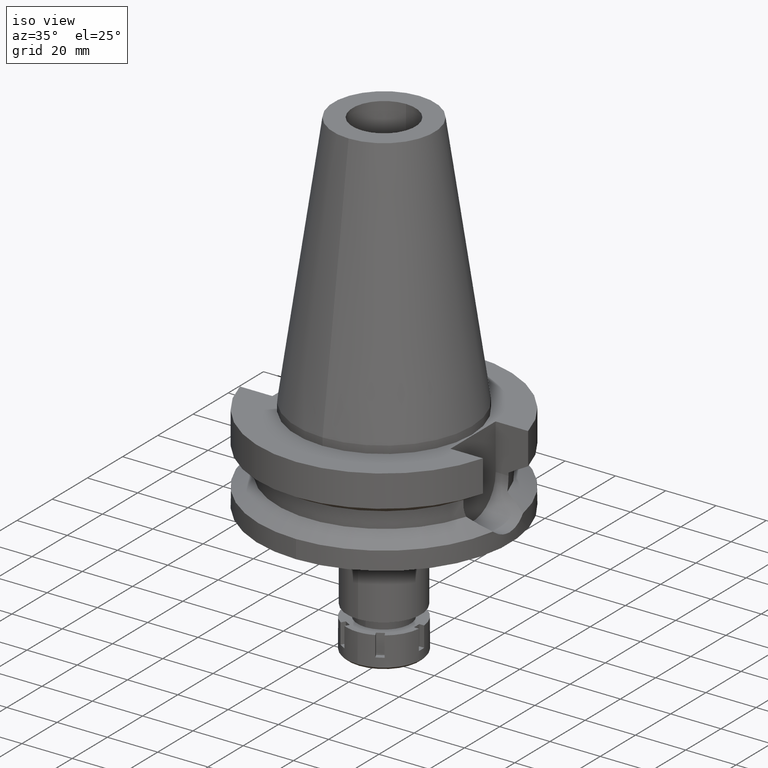
[diagram: clean part render]
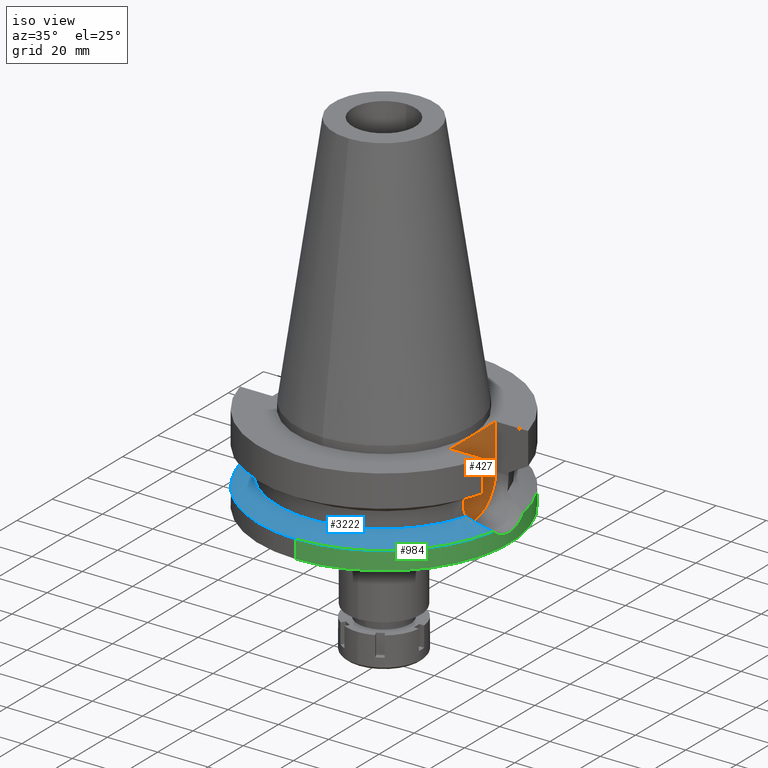
[diagram: same view with three faces highlighted in distinct colors, each labeled with its STEP entity id]
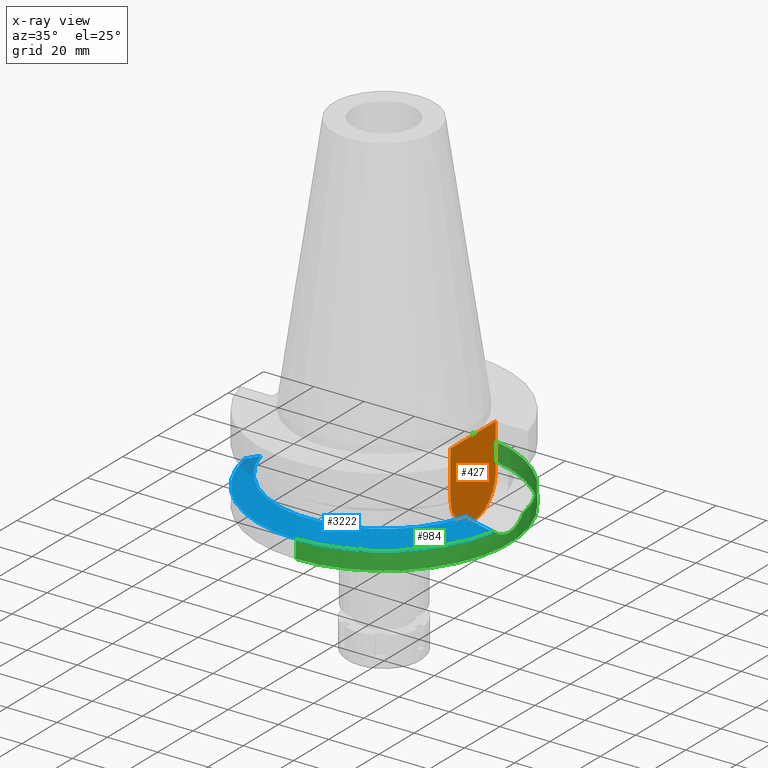
[diagram: x-ray of the same camera — body ghosted, the three highlighted faces saturated]
A machine part, iso view with three faces highlighted in distinct colors.
The next image is the same camera in x-ray (body ghosted, the three faces saturated) — at least one of them is partly hidden behind the body in this view.
Their STEP definitions:

[orange] entity #427 — the highlighted planar face has unit normal (1, 0, 0).
#89 = DIRECTION ( 'NONE',  ( 0.0000000000000000000, 1.000000000000000000, 0.0000000000000000000 ) ) ;
#187 = LINE ( 'NONE', #202, #918 ) ;
#202 = CARTESIAN_POINT ( 'NONE',  ( 35.39999999999999858, -12.84999999999999964, -21.14999999999999858 ) ) ;
#366 = LINE ( 'NONE', #3529, #743 ) ;
#390 = DIRECTION ( 'NONE',  ( -1.000000000000000000, 0.0000000000000000000, 0.0000000000000000000 ) ) ;
#427 = ADVANCED_FACE ( 'NONE', ( #1454 ), #3168, .T. ) ;
#472 = CARTESIAN_POINT ( 'NONE',  ( 35.39999999999999858, 12.84999999999999964, -3.000000000000000000 ) ) ;
#494 = CARTESIAN_POINT ( 'NONE',  ( 35.39999999999999858, -12.84999999999999964, -3.000000000000000000 ) ) ;
#632 = VECTOR ( 'NONE', #667, 1000.000000000000000 ) ;
#639 = CARTESIAN_POINT ( 'NONE',  ( 35.39999999999999858, 0.0000000000000000000, 0.0000000000000000000 ) ) ;
#667 = DIRECTION ( 'NONE',  ( 0.0000000000000000000, 0.0000000000000000000, -1.000000000000000000 ) ) ;
#669 = EDGE_CURVE ( 'NONE', #3418, #3683, #187, .T. ) ;
#743 = VECTOR ( 'NONE', #970, 1000.000000000000000 ) ;
#916 = ORIENTED_EDGE ( 'NONE', *, *, #2698, .F. ) ;
#918 = VECTOR ( 'NONE', #3643, 1000.000000000000000 ) ;
#962 = DIRECTION ( 'NONE',  ( 0.0000000000000000000, 1.000000000000000000, 0.0000000000000000000 ) ) ;
#970 = DIRECTION ( 'NONE',  ( 0.0000000000000000000, -1.000000000000000000, 0.0000000000000000000 ) ) ;
#1078 = ORIENTED_EDGE ( 'NONE', *, *, #3591, .F. ) ;
#1120 = EDGE_CURVE ( 'NONE', #1741, #3683, #366, .T. ) ;
#1182 = CARTESIAN_POINT ( 'NONE',  ( 35.39999999999999858, 0.0000000000000000000, -21.14999999999999858 ) ) ;
#1255 = LINE ( 'NONE', #3541, #632 ) ;
#1330 = ORIENTED_EDGE ( 'NONE', *, *, #1120, .T. ) ;
#1454 = FACE_OUTER_BOUND ( 'NONE', #3000, .T. ) ;
#1580 = AXIS2_PLACEMENT_3D ( 'NONE', #1182, #390, #962 ) ;
#1741 = VERTEX_POINT ( 'NONE', #472 ) ;
#2051 = CIRCLE ( 'NONE', #1580, 12.84999999999999964 ) ;
#2406 = VERTEX_POINT ( 'NONE', #2628 ) ;
#2454 = CARTESIAN_POINT ( 'NONE',  ( 35.39999999999999858, -12.84999999999999964, -21.14999999999999858 ) ) ;
#2628 = CARTESIAN_POINT ( 'NONE',  ( 35.39999999999999858, 12.84999999999999964, -21.14999999999999858 ) ) ;
#2632 = DIRECTION ( 'NONE',  ( 1.000000000000000000, 0.0000000000000000000, 0.0000000000000000000 ) ) ;
#2698 = EDGE_CURVE ( 'NONE', #2406, #3418, #2051, .T. ) ;
#3000 = EDGE_LOOP ( 'NONE', ( #3412, #916, #1078, #1330 ) ) ;
#3166 = AXIS2_PLACEMENT_3D ( 'NONE', #639, #2632, #89 ) ;
#3168 = PLANE ( 'NONE',  #3166 ) ;
#3412 = ORIENTED_EDGE ( 'NONE', *, *, #669, .F. ) ;
#3418 = VERTEX_POINT ( 'NONE', #2454 ) ;
#3529 = CARTESIAN_POINT ( 'NONE',  ( 35.39999999999999858, 12.84999999999999964, -3.000000000000000000 ) ) ;
#3541 = CARTESIAN_POINT ( 'NONE',  ( 35.39999999999999858, 12.84999999999999964, -3.000000000000000000 ) ) ;
#3591 = EDGE_CURVE ( 'NONE', #1741, #2406, #1255, .T. ) ;
#3643 = DIRECTION ( 'NONE',  ( 0.0000000000000000000, 0.0000000000000000000, 1.000000000000000000 ) ) ;
#3683 = VERTEX_POINT ( 'NONE', #494 ) ;

[blue] entity #3222 — the highlighted conical surface has half-angle 60 deg.
#17 = CARTESIAN_POINT ( 'NONE',  ( 44.18050680251486284, -10.79303268037383745, -28.12752329876328616 ) ) ;
#146 = CARTESIAN_POINT ( 'NONE',  ( -47.10444077492046233, -9.656436360011680264, -29.63100032741921197 ) ) ;
#163 = CARTESIAN_POINT ( 'NONE',  ( 0.0000000000000000000, 0.0000000000000000000, -26.40718074535000426 ) ) ;
#319 = ORIENTED_EDGE ( 'NONE', *, *, #2004, .F. ) ;
#388 = CARTESIAN_POINT ( 'NONE',  ( -45.35595685379431075, -10.37453825949165420, -28.73231565433005485 ) ) ;
#401 = CARTESIAN_POINT ( 'NONE',  ( 0.0000000000000000000, 0.0000000000000000000, -30.73730776426999967 ) ) ;
#443 = CARTESIAN_POINT ( 'NONE',  ( -45.65597843511095988, -10.26026402487122624, -28.88663795115392929 ) ) ;
#466 = CARTESIAN_POINT ( 'NONE',  ( -45.49495221064288586, -10.32197403586418183, -28.80381476601476010 ) ) ;
#551 = CARTESIAN_POINT ( 'NONE',  ( 44.92206859463513524, -10.53645564615531427, -28.50924508635253218 ) ) ;
#636 = ORIENTED_EDGE ( 'NONE', *, *, #2619, .F. ) ;
#713 = DIRECTION ( 'NONE',  ( 0.0000000000000000000, 0.0000000000000000000, 1.000000000000000000 ) ) ;
#755 = CARTESIAN_POINT ( 'NONE',  ( -48.69708272383760317, -8.880526328240629041, -30.44773561679232188 ) ) ;
#802 = CARTESIAN_POINT ( 'NONE',  ( 49.26250064874000145, -8.556052234130000045, -30.73730776426999967 ) ) ;
#829 = CARTESIAN_POINT ( 'NONE',  ( 48.20509490363120619, -9.162861385617201648, -30.19576983475676002 ) ) ;
#994 = EDGE_CURVE ( 'NONE', #2036, #1119, #1912, .T. ) ;
#997 = CIRCLE ( 'NONE', #1046, 50.00000000000000000 ) ;
#1046 = AXIS2_PLACEMENT_3D ( 'NONE', #401, #3489, #2043 ) ;
#1119 = VERTEX_POINT ( 'NONE', #1246 ) ;
#1145 = CARTESIAN_POINT ( 'NONE',  ( 45.28101941663414465, -10.40486596879754977, -28.69385293657803260 ) ) ;
#1183 = VERTEX_POINT ( 'NONE', #802 ) ;
#1199 = DIRECTION ( 'NONE',  ( 0.0000000000000000000, 0.0000000000000000000, -1.000000000000000000 ) ) ;
#1240 = CARTESIAN_POINT ( 'NONE',  ( -44.02898313747226666, -10.87224993265478012, -28.04968012967956881 ) ) ;
#1241 = DIRECTION ( 'NONE',  ( 0.9852500129747439050, -0.1711210446826074982, 0.0000000000000000000 ) ) ;
#1245 = FACE_OUTER_BOUND ( 'NONE', #2564, .T. ) ;
#1246 = CARTESIAN_POINT ( 'NONE',  ( 40.85052569294000335, -11.72538061688000077, -26.40718074535000426 ) ) ;
#1251 = CARTESIAN_POINT ( 'NONE',  ( -45.97435799354911978, -10.13562219576522239, -29.05036510477009415 ) ) ;
#1302 = CARTESIAN_POINT ( 'NONE',  ( -46.76576395726265645, -9.806563228170537272, -29.45708685090501788 ) ) ;
#1423 = CARTESIAN_POINT ( 'NONE',  ( 40.85052569294000335, -11.72538061688000077, -26.40718074535000426 ) ) ;
#1450 = EDGE_CURVE ( 'NONE', #1119, #1183, #3203, .T. ) ;
#1591 = CARTESIAN_POINT ( 'NONE',  ( -45.41397998709661721, -10.35267355713353865, -28.76216350671508337 ) ) ;
#1679 = AXIS2_PLACEMENT_3D ( 'NONE', #163, #713, #2084 ) ;
#1838 = VERTEX_POINT ( 'NONE', #3503 ) ;
#1912 = CIRCLE ( 'NONE', #1679, 42.50000000000000000 ) ;
#2004 = EDGE_CURVE ( 'NONE', #2916, #2036, #2238, .T. ) ;
#2005 = CARTESIAN_POINT ( 'NONE',  ( 41.75374701443529091, -11.51562693968261541, -26.87500595815307847 ) ) ;
#2019 = CARTESIAN_POINT ( 'NONE',  ( 43.79625427900679568, -10.91865426759223645, -27.92956461163012349 ) ) ;
#2036 = VERTEX_POINT ( 'NONE', #3327 ) ;
#2043 = DIRECTION ( 'NONE',  ( 0.0000000000000000000, -1.000000000000000000, 0.0000000000000000000 ) ) ;
#2084 = DIRECTION ( 'NONE',  ( 0.0000000000000000000, -1.000000000000000000, 0.0000000000000000000 ) ) ;
#2090 = CARTESIAN_POINT ( 'NONE',  ( -45.34288699052867599, -10.37944819937579410, -28.72559219624891114 ) ) ;
#2238 = B_SPLINE_CURVE_WITH_KNOTS ( 'NONE', 3,
 ( #3008, #755, #2366, #146, #1302, #2677, #1251, #443, #466, #1591, #2932, #388, #2090, #1240, #3522, #3259 ),
 .UNSPECIFIED., .F., .F.,
 ( 4, 2, 2, 1, 1, 1, 1, 2, 2, 4 ),
 ( 0.0000000000000000000, 0.2500000000000746625, 0.3750000000001129097, 0.4375000000001317835, 0.4687500000001411093, 0.4843750000001447176, 0.4921875000001464384, 0.4960937500001461609, 0.5000000000001458833, 1.000000000000000000 ),
 .UNSPECIFIED. ) ;
#2277 = CARTESIAN_POINT ( 'NONE',  ( 46.99199985552174752, -9.743663666346247254, -29.57370261077979023 ) ) ;
#2288 = AXIS2_PLACEMENT_3D ( 'NONE', #3179, #2377, #3209 ) ;
#2325 = ORIENTED_EDGE ( 'NONE', *, *, #1450, .F. ) ;
#2366 = CARTESIAN_POINT ( 'NONE',  ( -48.08689051476991239, -9.197622728037320172, -30.13514079284534120 ) ) ;
#2377 = DIRECTION ( 'NONE',  ( 0.0000000000000000000, 0.0000000000000000000, -1.000000000000000000 ) ) ;
#2448 = ORIENTED_EDGE ( 'NONE', *, *, #3219, .F. ) ;
#2530 = AXIS2_PLACEMENT_3D ( 'NONE', #3445, #1199, #1241 ) ;
#2563 = CARTESIAN_POINT ( 'NONE',  ( 42.60308182613887595, -11.28512631697354607, -27.31412632607915469 ) ) ;
#2564 = EDGE_LOOP ( 'NONE', ( #2448, #636, #2325, #3524, #319 ) ) ;
#2619 = EDGE_CURVE ( 'NONE', #1183, #1838, #3367, .T. ) ;
#2677 = CARTESIAN_POINT ( 'NONE',  ( -46.24095837421396737, -10.02676724402041586, -29.18740674648143951 ) ) ;
#2794 = CARTESIAN_POINT ( 'NONE',  ( -49.26250064874000145, -8.556052234130000045, -30.73730776426999967 ) ) ;
#2916 = VERTEX_POINT ( 'NONE', #2794 ) ;
#2932 = CARTESIAN_POINT ( 'NONE',  ( -45.37917922458129993, -10.36579688028481883, -28.74426163733066986 ) ) ;
#3008 = CARTESIAN_POINT ( 'NONE',  ( -49.26250064874000145, -8.556052234130000045, -30.73730776426999967 ) ) ;
#3179 = CARTESIAN_POINT ( 'NONE',  ( 0.0000000000000000000, 0.0000000000000000000, -28.57224425480999841 ) ) ;
#3185 = CONICAL_SURFACE ( 'NONE', #2288, 46.25000000000000000, 1.047197551196400456 ) ;
#3203 = B_SPLINE_CURVE_WITH_KNOTS ( 'NONE', 3,
 ( #1423, #2005, #2563, #2019, #17, #551, #1145, #2277, #829, #3429 ),
 .UNSPECIFIED., .F., .F.,
 ( 4, 2, 2, 2, 4 ),
 ( 0.0000000000000000000, 0.2500000000000006106, 0.3750000000000009992, 0.5000000000000013323, 1.000000000000000000 ),
 .UNSPECIFIED. ) ;
#3209 = DIRECTION ( 'NONE',  ( 0.0000000000000000000, -1.000000000000000000, 0.0000000000000000000 ) ) ;
#3219 = EDGE_CURVE ( 'NONE', #1838, #2916, #997, .T. ) ;
#3222 = ADVANCED_FACE ( 'NONE', ( #1245 ), #3185, .T. ) ;
#3259 = CARTESIAN_POINT ( 'NONE',  ( -40.85052569294000335, -11.72538061688000077, -26.40718074535000426 ) ) ;
#3327 = CARTESIAN_POINT ( 'NONE',  ( -40.85052569294000335, -11.72538061688000077, -26.40718074535000426 ) ) ;
#3367 = CIRCLE ( 'NONE', #2530, 50.00000000000000000 ) ;
#3429 = CARTESIAN_POINT ( 'NONE',  ( 49.26250064874000145, -8.556052234130000045, -30.73730776426999967 ) ) ;
#3445 = CARTESIAN_POINT ( 'NONE',  ( 0.0000000000000000000, 0.0000000000000000000, -30.73730776426999967 ) ) ;
#3489 = DIRECTION ( 'NONE',  ( 0.0000000000000000000, 0.0000000000000000000, -1.000000000000000000 ) ) ;
#3503 = CARTESIAN_POINT ( 'NONE',  ( 0.0000000000000000000, -50.00000000000000000, -30.73730776426999967 ) ) ;
#3522 = CARTESIAN_POINT ( 'NONE',  ( -42.53492447200486737, -11.33421531844717833, -27.27961831796055847 ) ) ;
#3524 = ORIENTED_EDGE ( 'NONE', *, *, #994, .F. ) ;

[green] entity #984 — the highlighted cylindrical surface (partial cylindrical patch) has radius 50 mm, axis along (0, 0, -1).
#40 = DIRECTION ( 'NONE',  ( 0.0000000000000000000, 1.000000000000000000, 0.0000000000000000000 ) ) ;
#115 = CARTESIAN_POINT ( 'NONE',  ( 49.77982781054510752, -4.687306582323852666, -33.11470790354966454 ) ) ;
#128 = VERTEX_POINT ( 'NONE', #3370 ) ;
#169 = CARTESIAN_POINT ( 'NONE',  ( 49.66533562080989839, -5.772269753672869541, -32.63579971273361480 ) ) ;
#171 = AXIS2_PLACEMENT_3D ( 'NONE', #1367, #473, #2141 ) ;
#215 = CARTESIAN_POINT ( 'NONE',  ( 49.82081573775596439, 4.229771872530493582, -33.28463879269027359 ) ) ;
#268 = DIRECTION ( 'NONE',  ( 0.0000000000000000000, 2.152361642122000014E-14, -1.000000000000000000 ) ) ;
#288 = VECTOR ( 'NONE', #268, 1000.000000000000000 ) ;
#413 = CARTESIAN_POINT ( 'NONE',  ( 49.76779264234673406, -4.813552442473236326, -33.06481752113550954 ) ) ;
#429 = CARTESIAN_POINT ( 'NONE',  ( 49.49361717508970315, -7.116953428812544225, -31.87774830563387596 ) ) ;
#451 = ORIENTED_EDGE ( 'NONE', *, *, #1990, .F. ) ;
#473 = DIRECTION ( 'NONE',  ( 0.0000000000000000000, 0.0000000000000000000, 1.000000000000000000 ) ) ;
#633 = CYLINDRICAL_SURFACE ( 'NONE', #3479, 50.00000000000000000 ) ;
#671 = CARTESIAN_POINT ( 'NONE',  ( 49.86958544424646789, 3.607938959051658401, -33.48470105272734543 ) ) ;
#712 = CARTESIAN_POINT ( 'NONE',  ( 0.0000000000000000000, -50.00000000000000000, -30.73730776426999967 ) ) ;
#717 = CARTESIAN_POINT ( 'NONE',  ( 49.71773619475094108, -5.301485227302436876, -32.85669905106659172 ) ) ;
#735 = ORIENTED_EDGE ( 'NONE', *, *, #3402, .T. ) ;
#758 = VERTEX_POINT ( 'NONE', #1909 ) ;
#782 = CARTESIAN_POINT ( 'NONE',  ( 49.79512546278843388, 4.521580902154769710, -33.17822051818494344 ) ) ;
#802 = CARTESIAN_POINT ( 'NONE',  ( 49.26250064874000145, -8.556052234130000045, -30.73730776426999967 ) ) ;
#858 = DIRECTION ( 'NONE',  ( 0.0000000000000000000, 0.0000000000000000000, -1.000000000000000000 ) ) ;
#877 = CIRCLE ( 'NONE', #171, 50.00000000000000000 ) ;
#955 = DIRECTION ( 'NONE',  ( 0.0000000000000000000, -2.250196262218999978E-14, -1.000000000000000000 ) ) ;
#984 = ADVANCED_FACE ( 'NONE', ( #3184 ), #633, .T. ) ;
#991 = CARTESIAN_POINT ( 'NONE',  ( 49.84839303696927004, 3.895404147816752261, -33.39823680735553779 ) ) ;
#1010 = ORIENTED_EDGE ( 'NONE', *, *, #1408, .T. ) ;
#1016 = CARTESIAN_POINT ( 'NONE',  ( 49.79081990969597626, -4.568854175400391959, -33.16033354870382510 ) ) ;
#1029 = CARTESIAN_POINT ( 'NONE',  ( 49.86090890960444710, -3.802093052509309068, -33.45158313270668060 ) ) ;
#1099 = VECTOR ( 'NONE', #955, 1000.000000000000000 ) ;
#1183 = VERTEX_POINT ( 'NONE', #802 ) ;
#1199 = DIRECTION ( 'NONE',  ( 0.0000000000000000000, 0.0000000000000000000, -1.000000000000000000 ) ) ;
#1203 = CARTESIAN_POINT ( 'NONE',  ( 49.26250064874000145, 8.556052234130000045, -30.73730776426999967 ) ) ;
#1241 = DIRECTION ( 'NONE',  ( 0.9852500129747439050, -0.1711210446826074982, 0.0000000000000000000 ) ) ;
#1332 = CARTESIAN_POINT ( 'NONE',  ( 49.26250064874000145, 8.556052234130000045, -30.73730776426999967 ) ) ;
#1351 = CARTESIAN_POINT ( 'NONE',  ( 49.66989089100094645, 5.761879091816557441, -32.66244013548420355 ) ) ;
#1367 = CARTESIAN_POINT ( 'NONE',  ( 0.0000000000000000000, 2.584494604920999480E-14, -38.00000000000000000 ) ) ;
#1406 = CARTESIAN_POINT ( 'NONE',  ( 0.0000000000000000000, 0.0000000000000000000, -30.73730776426999967 ) ) ;
#1408 = EDGE_CURVE ( 'NONE', #1465, #1620, #2397, .T. ) ;
#1465 = VERTEX_POINT ( 'NONE', #2861 ) ;
#1497 = ORIENTED_EDGE ( 'NONE', *, *, #3497, .F. ) ;
#1552 = CARTESIAN_POINT ( 'NONE',  ( 49.62583282172385424, -6.100547697829610705, -32.46631986295611227 ) ) ;
#1620 = VERTEX_POINT ( 'NONE', #1203 ) ;
#1639 = ORIENTED_EDGE ( 'NONE', *, *, #2619, .T. ) ;
#1767 = LINE ( 'NONE', #712, #1099 ) ;
#1838 = VERTEX_POINT ( 'NONE', #3503 ) ;
#1839 = CARTESIAN_POINT ( 'NONE',  ( 49.90870988845052381, 3.032621470753451565, -33.64335829089639418 ) ) ;
#1844 = CARTESIAN_POINT ( 'NONE',  ( 50.00000025826000183, 3.971935901390999891E-14, -34.00000117529000931 ) ) ;
#1862 = CARTESIAN_POINT ( 'NONE',  ( 49.91306816535026769, -3.031090856383016785, -33.66157117761309792 ) ) ;
#1875 = CARTESIAN_POINT ( 'NONE',  ( 49.80631388213519273, 4.396616480788829051, -33.22463328520818493 ) ) ;
#1904 = CARTESIAN_POINT ( 'NONE',  ( 49.79173955586912115, 4.558792742372431483, -33.16415544152199857 ) ) ;
#1909 = CARTESIAN_POINT ( 'NONE',  ( 0.0000000000000000000, -50.00000000000000000, -38.00000000000000000 ) ) ;
#1966 = DIRECTION ( 'NONE',  ( 0.0000000000000000000, 0.0000000000000000000, -1.000000000000000000 ) ) ;
#1990 = EDGE_CURVE ( 'NONE', #1183, #128, #2790, .T. ) ;
#2083 = CARTESIAN_POINT ( 'NONE',  ( 49.98261161639151595, 1.500598209085929335, -33.93574248253875680 ) ) ;
#2109 = CARTESIAN_POINT ( 'NONE',  ( 49.75683425657648229, -4.924090891344000021, -33.01938925286305704 ) ) ;
#2141 = DIRECTION ( 'NONE',  ( 0.0000000000000000000, -1.000000000000000000, 0.0000000000000000000 ) ) ;
#2144 = CARTESIAN_POINT ( 'NONE',  ( 50.00000025826001604, -0.7410411368554765676, -34.00000000000000000 ) ) ;
#2158 = CARTESIAN_POINT ( 'NONE',  ( 49.79055600884940702, -4.571733192334501261, -33.15923719347043175 ) ) ;
#2198 = CARTESIAN_POINT ( 'NONE',  ( 49.79242228463662912, 4.551311719067578920, -33.16699222119246571 ) ) ;
#2241 = DIRECTION ( 'NONE',  ( 0.0000000000000000000, -1.000000000000000000, 0.0000000000000000000 ) ) ;
#2289 = ORIENTED_EDGE ( 'NONE', *, *, #3252, .T. ) ;
#2397 = CIRCLE ( 'NONE', #2520, 50.00000000000000000 ) ;
#2490 = CARTESIAN_POINT ( 'NONE',  ( 49.79350482947953793, 4.539420145970743725, -33.17148930651593020 ) ) ;
#2520 = AXIS2_PLACEMENT_3D ( 'NONE', #1406, #858, #40 ) ;
#2530 = AXIS2_PLACEMENT_3D ( 'NONE', #3445, #1199, #1241 ) ;
#2619 = EDGE_CURVE ( 'NONE', #1183, #1838, #3367, .T. ) ;
#2642 = CARTESIAN_POINT ( 'NONE',  ( 50.00000025826000183, 0.7410501625580649954, -34.00000000000000000 ) ) ;
#2656 = CARTESIAN_POINT ( 'NONE',  ( 49.98261383967803795, -1.500558363958419905, -33.93574400293083215 ) ) ;
#2691 = CARTESIAN_POINT ( 'NONE',  ( 49.73406078194996383, -5.148144078208881425, -32.92477821102355762 ) ) ;
#2753 = CARTESIAN_POINT ( 'NONE',  ( 49.79888465282128607, 4.479942984900180392, -33.19382580994680154 ) ) ;
#2790 = B_SPLINE_CURVE_WITH_KNOTS ( 'NONE', 3,
 ( #2974, #2988, #429, #1552, #169, #717, #2691, #2109, #413, #115, #3311, #3578, #3233, #2158, #1016, #1029, #1862, #2656, #2144, #1844 ),
 .UNSPECIFIED., .F., .F.,
 ( 4, 2, 2, 2, 1, 1, 1, 1, 2, 2, 2, 4 ),
 ( 0.0000000000000000000, 0.2500000000000002776, 0.3750000000000009992, 0.4375000000000018319, 0.4687500000000023315, 0.4843750000000018319, 0.4921875000000020539, 0.4960937500000022760, 0.4980468750000023870, 0.5000000000000025535, 0.7500000000000013323, 1.000000000000000000 ),
 .UNSPECIFIED. ) ;
#2808 = CARTESIAN_POINT ( 'NONE',  ( 0.0000000000000000000, 50.00000000000000000, -30.73730776426999967 ) ) ;
#2812 = CARTESIAN_POINT ( 'NONE',  ( 0.0000000000000000000, 2.584494604920999480E-14, 111.0400000000000063 ) ) ;
#2861 = CARTESIAN_POINT ( 'NONE',  ( 0.0000000000000000000, 50.00000000000000000, -30.73730776426999967 ) ) ;
#2866 = ORIENTED_EDGE ( 'NONE', *, *, #3299, .F. ) ;
#2905 = VERTEX_POINT ( 'NONE', #2955 ) ;
#2955 = CARTESIAN_POINT ( 'NONE',  ( 0.0000000000000000000, 50.00000000000000000, -38.00000000000000000 ) ) ;
#2974 = CARTESIAN_POINT ( 'NONE',  ( 49.26250064874000145, -8.556052234130000045, -30.73730776426999967 ) ) ;
#2988 = CARTESIAN_POINT ( 'NONE',  ( 49.38719707816553495, -7.838097531704094401, -31.37803591097580025 ) ) ;
#3050 = CARTESIAN_POINT ( 'NONE',  ( 49.38719528049774254, 7.838107881991117409, -31.37802667401390977 ) ) ;
#3071 = CARTESIAN_POINT ( 'NONE',  ( 49.73975255189664324, 5.127509536886620367, -32.94811602936307793 ) ) ;
#3103 = B_SPLINE_CURVE_WITH_KNOTS ( 'NONE', 3,
 ( #3548, #2642, #2083, #3227, #1839, #671, #991, #215, #1875, #2753, #782, #2490, #2198, #1904, #3071, #1351, #3285, #3050, #1332 ),
 .UNSPECIFIED., .F., .F.,
 ( 4, 2, 2, 1, 1, 1, 1, 1, 2, 2, 2, 4 ),
 ( 0.0000000000000000000, 0.2499999999999247824, 0.3749999999998872013, 0.4374999999998681055, 0.4687499999998585021, 0.4843749999998538946, 0.4921874999998520073, 0.4960937499998513411, 0.4980468749998512301, 0.4999999999998511191, 0.7499999999999255040, 1.000000000000000000 ),
 .UNSPECIFIED. ) ;
#3155 = LINE ( 'NONE', #2808, #288 ) ;
#3184 = FACE_OUTER_BOUND ( 'NONE', #3594, .T. ) ;
#3227 = CARTESIAN_POINT ( 'NONE',  ( 49.93044569078610806, 2.648572746981696202, -33.73009097175663840 ) ) ;
#3233 = CARTESIAN_POINT ( 'NONE',  ( 49.78974543592571678, -4.580568652403279373, -33.15586994646981367 ) ) ;
#3252 = EDGE_CURVE ( 'NONE', #1838, #758, #1767, .T. ) ;
#3285 = CARTESIAN_POINT ( 'NONE',  ( 49.49361225530148545, 7.116990880697452226, -31.87771967129499018 ) ) ;
#3299 = EDGE_CURVE ( 'NONE', #128, #1620, #3103, .T. ) ;
#3311 = CARTESIAN_POINT ( 'NONE',  ( 49.78565799084423560, -4.624875436520476946, -33.13889740141768669 ) ) ;
#3367 = CIRCLE ( 'NONE', #2530, 50.00000000000000000 ) ;
#3370 = CARTESIAN_POINT ( 'NONE',  ( 50.00000025826000183, 3.971935901390999891E-14, -34.00000117529000931 ) ) ;
#3402 = EDGE_CURVE ( 'NONE', #758, #2905, #877, .T. ) ;
#3445 = CARTESIAN_POINT ( 'NONE',  ( 0.0000000000000000000, 0.0000000000000000000, -30.73730776426999967 ) ) ;
#3479 = AXIS2_PLACEMENT_3D ( 'NONE', #2812, #1966, #2241 ) ;
#3497 = EDGE_CURVE ( 'NONE', #1465, #2905, #3155, .T. ) ;
#3503 = CARTESIAN_POINT ( 'NONE',  ( 0.0000000000000000000, -50.00000000000000000, -30.73730776426999967 ) ) ;
#3548 = CARTESIAN_POINT ( 'NONE',  ( 50.00000025826000183, 3.971935901390999891E-14, -34.00000117529000931 ) ) ;
#3578 = CARTESIAN_POINT ( 'NONE',  ( 49.78852623004377875, -4.593834391825159180, -33.15080591701278223 ) ) ;
#3594 = EDGE_LOOP ( 'NONE', ( #1639, #2289, #735, #1497, #1010, #2866, #451 ) ) ;